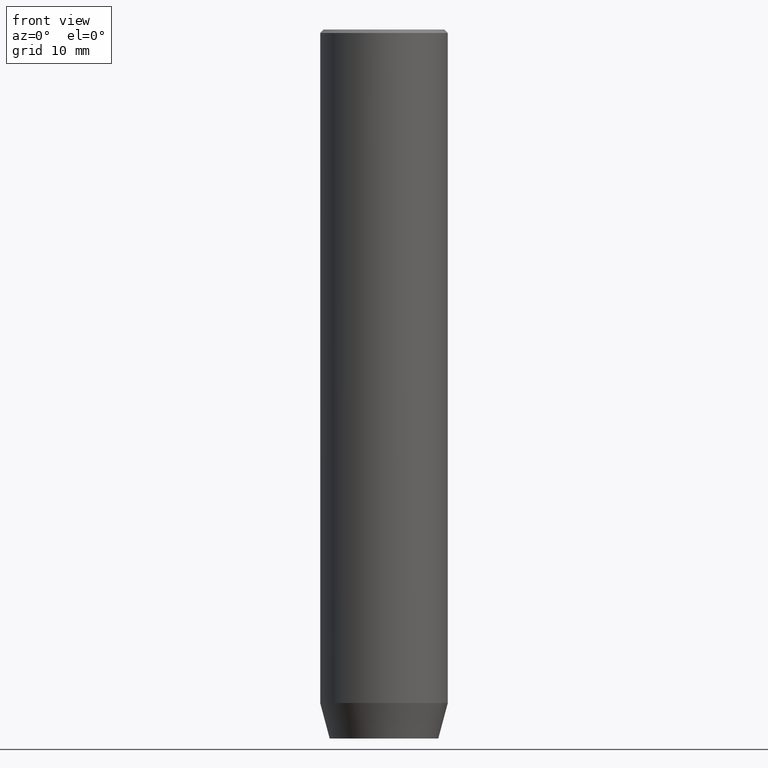
[diagram: clean part render]
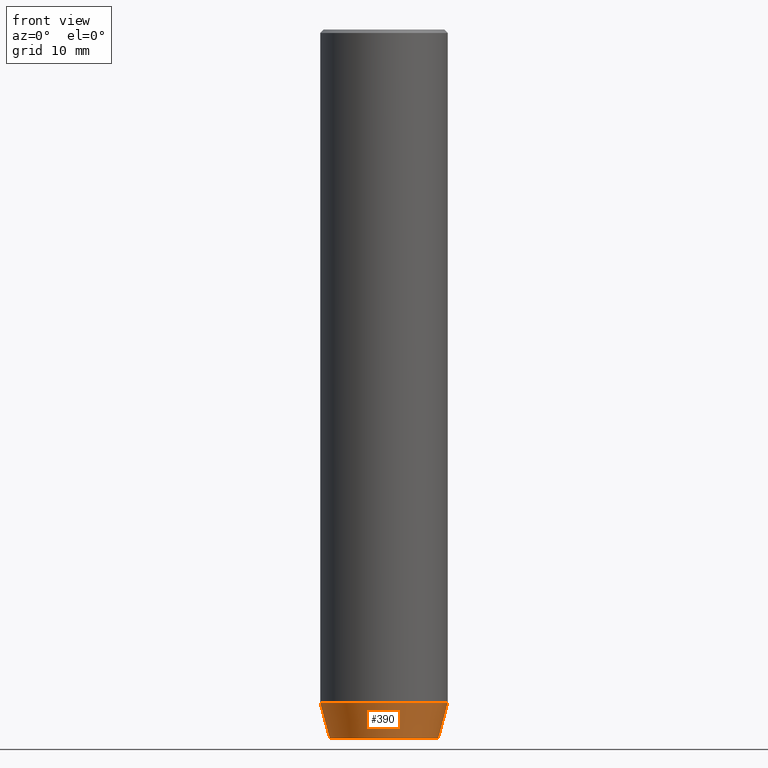
[diagram: same view with one face highlighted and labeled with its STEP entity id]
A machine part, front view. The second image highlights one B-rep face of the part: STEP entity #390.
In plain terms, the highlighted conical surface has half-angle 15 deg.
Its self-contained STEP definition (entity closure, byte-faithful):
#47 = DIRECTION ( 'NONE',  ( 1.000000000000000000, 0.000000000000000000, 0.000000000000000000 ) ) ;
#69 = EDGE_LOOP ( 'NONE', ( #99, #415, #395, #387 ) ) ;
#99 = ORIENTED_EDGE ( 'NONE', *, *, #537, .F. ) ;
#118 = CARTESIAN_POINT ( 'NONE',  ( 0.000000000000000000, 0.000000000000000000, -95.00000000000000000 ) ) ;
#126 = VERTEX_POINT ( 'NONE', #563 ) ;
#145 = DIRECTION ( 'NONE',  ( 0.2588190451025214611, 0.000000000000000000, 0.9659258262890679791 ) ) ;
#160 = DIRECTION ( 'NONE',  ( -0.000000000000000000, -0.000000000000000000, 1.000000000000000000 ) ) ;
#162 = AXIS2_PLACEMENT_3D ( 'NONE', #337, #469, #47 ) ;
#182 = CARTESIAN_POINT ( 'NONE',  ( 9.000000000000000000, 0.000000000000000000, -95.00000000000000000 ) ) ;
#251 = CARTESIAN_POINT ( 'NONE',  ( -7.660254037844380193, 1.020146339021394272E-15, -100.0000000000000000 ) ) ;
#266 = VECTOR ( 'NONE', #145, 1000.000000000000114 ) ;
#267 = DIRECTION ( 'NONE',  ( -0.000000000000000000, -0.000000000000000000, 1.000000000000000000 ) ) ;
#326 = FACE_OUTER_BOUND ( 'NONE', #69, .T. ) ;
#332 = CONICAL_SURFACE ( 'NONE', #162, 9.000000000000000000, 0.2617993877991502405 ) ;
#337 = CARTESIAN_POINT ( 'NONE',  ( 0.000000000000000000, 0.000000000000000000, -95.00000000000000000 ) ) ;
#360 = VERTEX_POINT ( 'NONE', #508 ) ;
#385 = VECTOR ( 'NONE', #386, 1000.000000000000114 ) ;
#386 = DIRECTION ( 'NONE',  ( -0.2588190451025214611, 3.169619151431774186E-17, 0.9659258262890679791 ) ) ;
#387 = ORIENTED_EDGE ( 'NONE', *, *, #622, .F. ) ;
#390 = ADVANCED_FACE ( 'NONE', ( #326 ), #332, .T. ) ;
#395 = ORIENTED_EDGE ( 'NONE', *, *, #440, .T. ) ;
#413 = VERTEX_POINT ( 'NONE', #422 ) ;
#415 = ORIENTED_EDGE ( 'NONE', *, *, #436, .T. ) ;
#418 = VERTEX_POINT ( 'NONE', #251 ) ;
#422 = CARTESIAN_POINT ( 'NONE',  ( -9.000000000000000000, 1.102182119232617714E-15, -95.00000000000000000 ) ) ;
#435 = CARTESIAN_POINT ( 'NONE',  ( -9.000000000000000000, 1.102182119232617714E-15, -95.00000000000000000 ) ) ;
#436 = EDGE_CURVE ( 'NONE', #418, #126, #485, .T. ) ;
#440 = EDGE_CURVE ( 'NONE', #126, #360, #527, .T. ) ;
#469 = DIRECTION ( 'NONE',  ( -0.000000000000000000, -0.000000000000000000, 1.000000000000000000 ) ) ;
#479 = LINE ( 'NONE', #435, #385 ) ;
#485 = CIRCLE ( 'NONE', #534, 7.660254037844380193 ) ;
#508 = CARTESIAN_POINT ( 'NONE',  ( 9.000000000000000000, 0.000000000000000000, -95.00000000000000000 ) ) ;
#527 = LINE ( 'NONE', #182, #266 ) ;
#534 = AXIS2_PLACEMENT_3D ( 'NONE', #618, #160, #630 ) ;
#537 = EDGE_CURVE ( 'NONE', #418, #413, #479, .T. ) ;
#561 = CIRCLE ( 'NONE', #633, 9.000000000000000000 ) ;
#563 = CARTESIAN_POINT ( 'NONE',  ( 7.660254037844380193, 0.000000000000000000, -100.0000000000000000 ) ) ;
#618 = CARTESIAN_POINT ( 'NONE',  ( 0.000000000000000000, 0.000000000000000000, -100.0000000000000000 ) ) ;
#621 = DIRECTION ( 'NONE',  ( 1.000000000000000000, 0.000000000000000000, 0.000000000000000000 ) ) ;
#622 = EDGE_CURVE ( 'NONE', #413, #360, #561, .T. ) ;
#630 = DIRECTION ( 'NONE',  ( 1.000000000000000000, 0.000000000000000000, 0.000000000000000000 ) ) ;
#633 = AXIS2_PLACEMENT_3D ( 'NONE', #118, #267, #621 ) ;